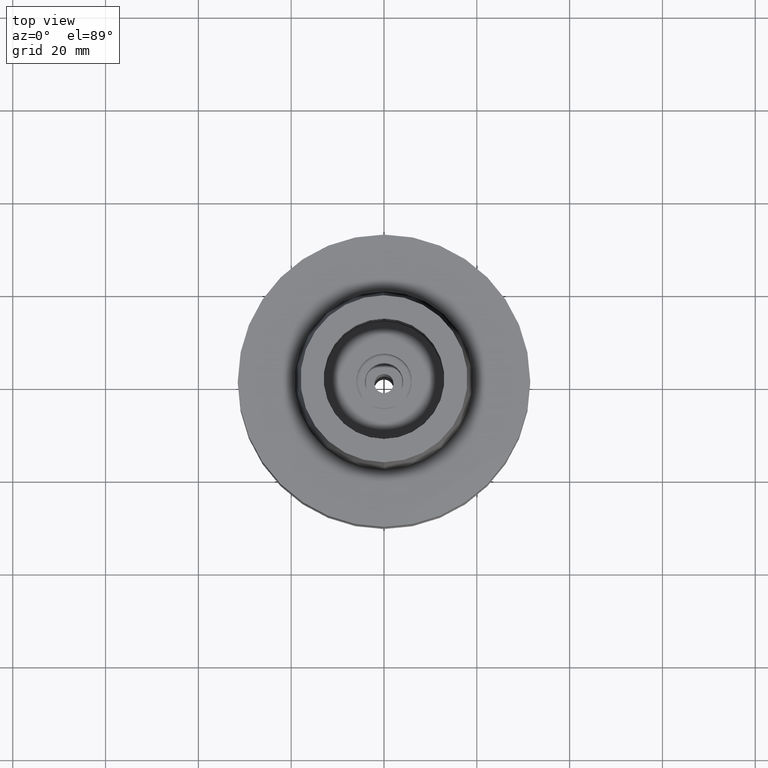
[diagram: clean part render]
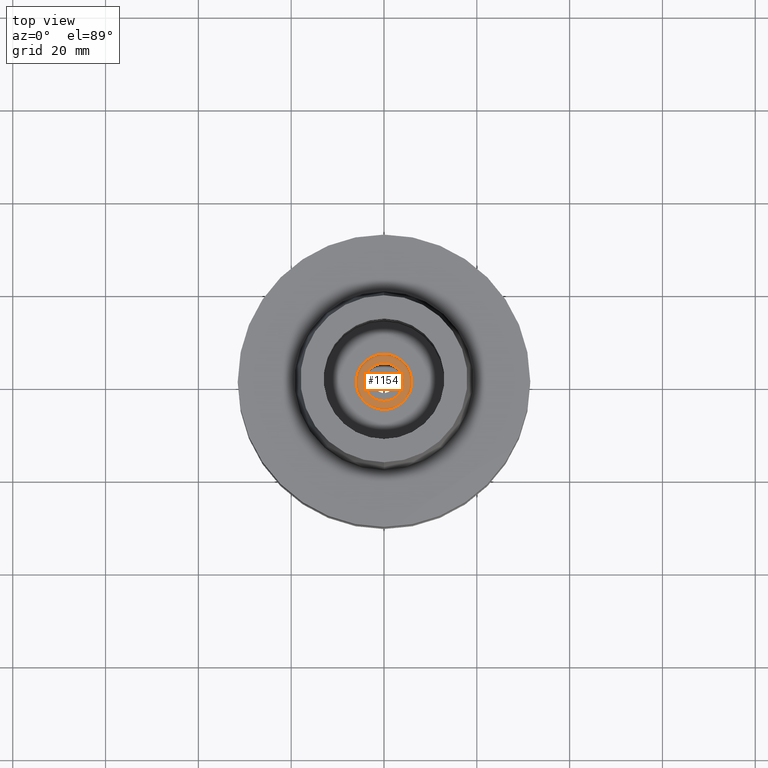
[diagram: same view with one face highlighted and labeled with its STEP entity id]
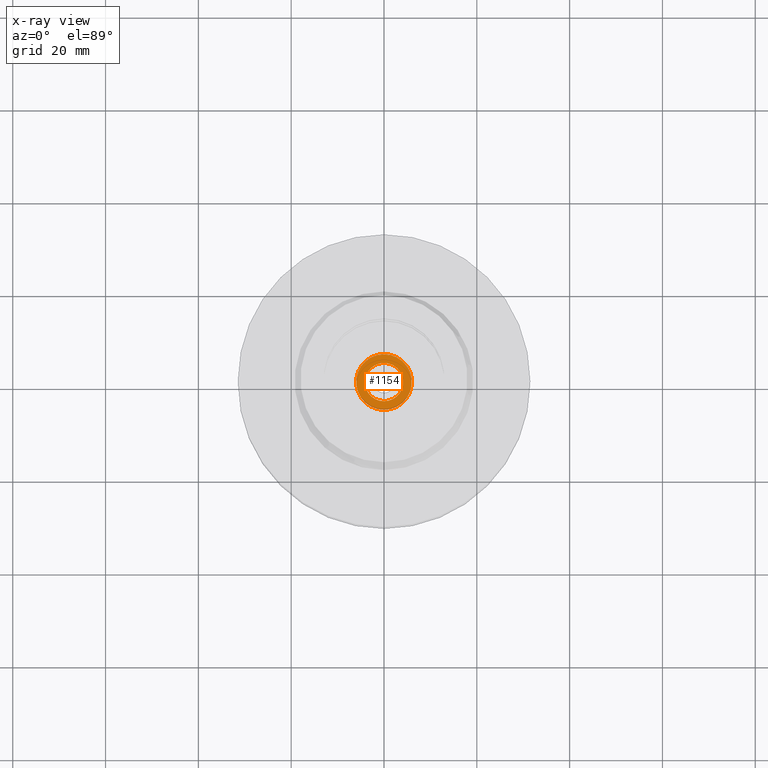
[diagram: x-ray of the same camera — body ghosted, the highlighted face saturated]
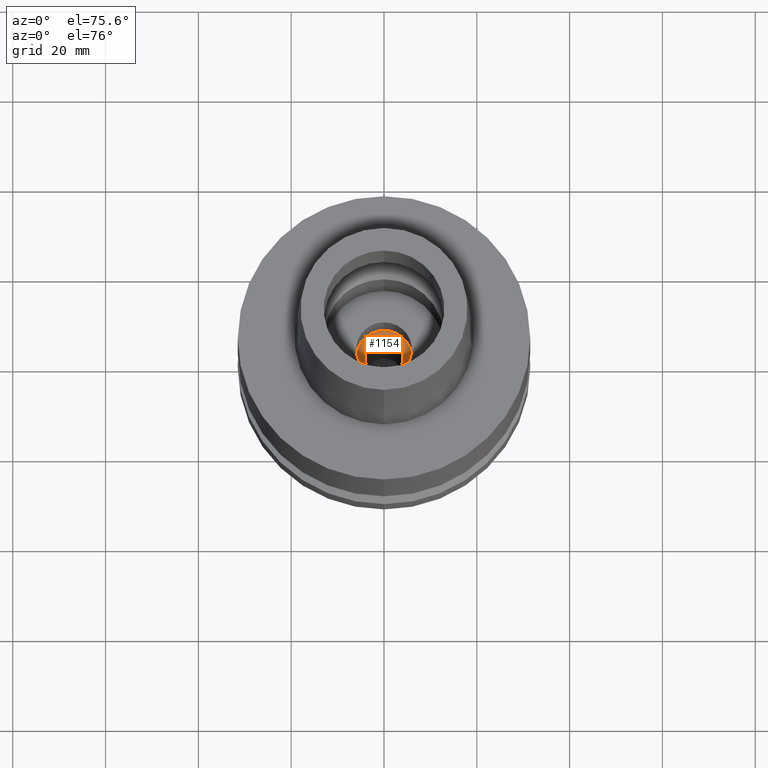
[diagram: same view with one face highlighted and labeled with its STEP entity id]
A machine part, top view. The second image highlights one B-rep face of the part: STEP entity #1154.
The next image is the same camera in x-ray: the body ghosted, the highlighted face saturated — about 0% of this face is hidden behind the body in this view.
A second angle (auxiliary view) of the same face is appended — the face is thin or edge-on in the first view.
In plain terms, the highlighted planar face has unit normal (0, 0, 1).
Its self-contained STEP definition (entity closure, byte-faithful):
#10 = ORIENTED_EDGE ( 'NONE', *, *, #1364, .F. ) ;
#60 = VERTEX_POINT ( 'NONE', #714 ) ;
#134 = AXIS2_PLACEMENT_3D ( 'NONE', #147, #961, #299 ) ;
#147 = CARTESIAN_POINT ( 'NONE',  ( 0.0000000000000000000, 0.0000000000000000000, -16.94999999999999929 ) ) ;
#284 = ORIENTED_EDGE ( 'NONE', *, *, #1115, .F. ) ;
#299 = DIRECTION ( 'NONE',  ( 0.0000000000000000000, -1.000000000000000000, 0.0000000000000000000 ) ) ;
#335 = VERTEX_POINT ( 'NONE', #459 ) ;
#362 = CARTESIAN_POINT ( 'NONE',  ( 0.0000000000000000000, 4.125000000000000000, -16.94999999999999929 ) ) ;
#370 = DIRECTION ( 'NONE',  ( 0.0000000000000000000, 1.000000000000000000, 0.0000000000000000000 ) ) ;
#439 = AXIS2_PLACEMENT_3D ( 'NONE', #1634, #2265, #1812 ) ;
#459 = CARTESIAN_POINT ( 'NONE',  ( 0.0000000000000000000, -4.125000000000000000, -16.94999999999999929 ) ) ;
#473 = DIRECTION ( 'NONE',  ( 0.0000000000000000000, 0.0000000000000000000, 1.000000000000000000 ) ) ;
#657 = FACE_BOUND ( 'NONE', #1004, .T. ) ;
#714 = CARTESIAN_POINT ( 'NONE',  ( 0.0000000000000000000, -6.000000000000000000, -16.94999999999999929 ) ) ;
#748 = DIRECTION ( 'NONE',  ( 0.0000000000000000000, 1.000000000000000000, 0.0000000000000000000 ) ) ;
#961 = DIRECTION ( 'NONE',  ( 0.0000000000000000000, 0.0000000000000000000, -1.000000000000000000 ) ) ;
#1004 = EDGE_LOOP ( 'NONE', ( #10, #284 ) ) ;
#1115 = EDGE_CURVE ( 'NONE', #335, #2060, #2064, .T. ) ;
#1141 = PLANE ( 'NONE',  #439 ) ;
#1154 = ADVANCED_FACE ( 'NONE', ( #2365, #657 ), #1141, .T. ) ;
#1212 = AXIS2_PLACEMENT_3D ( 'NONE', #1449, #2313, #370 ) ;
#1218 = EDGE_LOOP ( 'NONE', ( #1381, #1996 ) ) ;
#1364 = EDGE_CURVE ( 'NONE', #2060, #335, #2119, .T. ) ;
#1381 = ORIENTED_EDGE ( 'NONE', *, *, #2156, .F. ) ;
#1395 = CIRCLE ( 'NONE', #134, 6.000000000000000000 ) ;
#1449 = CARTESIAN_POINT ( 'NONE',  ( 0.0000000000000000000, 0.0000000000000000000, -16.94999999999999929 ) ) ;
#1634 = CARTESIAN_POINT ( 'NONE',  ( 0.0000000000000000000, 0.0000000000000000000, -16.94999999999999929 ) ) ;
#1679 = VERTEX_POINT ( 'NONE', #2686 ) ;
#1812 = DIRECTION ( 'NONE',  ( 1.000000000000000000, 0.0000000000000000000, 0.0000000000000000000 ) ) ;
#1889 = CIRCLE ( 'NONE', #2431, 6.000000000000000000 ) ;
#1932 = AXIS2_PLACEMENT_3D ( 'NONE', #2605, #473, #2200 ) ;
#1996 = ORIENTED_EDGE ( 'NONE', *, *, #2082, .F. ) ;
#2060 = VERTEX_POINT ( 'NONE', #362 ) ;
#2064 = CIRCLE ( 'NONE', #1932, 4.125000000000000000 ) ;
#2067 = CARTESIAN_POINT ( 'NONE',  ( 0.0000000000000000000, 0.0000000000000000000, -16.94999999999999929 ) ) ;
#2082 = EDGE_CURVE ( 'NONE', #60, #1679, #1395, .T. ) ;
#2119 = CIRCLE ( 'NONE', #1212, 4.125000000000000000 ) ;
#2156 = EDGE_CURVE ( 'NONE', #1679, #60, #1889, .T. ) ;
#2200 = DIRECTION ( 'NONE',  ( 0.0000000000000000000, -1.000000000000000000, 0.0000000000000000000 ) ) ;
#2265 = DIRECTION ( 'NONE',  ( 0.0000000000000000000, 0.0000000000000000000, 1.000000000000000000 ) ) ;
#2313 = DIRECTION ( 'NONE',  ( 0.0000000000000000000, 0.0000000000000000000, 1.000000000000000000 ) ) ;
#2365 = FACE_OUTER_BOUND ( 'NONE', #1218, .T. ) ;
#2431 = AXIS2_PLACEMENT_3D ( 'NONE', #2067, #2690, #748 ) ;
#2605 = CARTESIAN_POINT ( 'NONE',  ( 0.0000000000000000000, 0.0000000000000000000, -16.94999999999999929 ) ) ;
#2686 = CARTESIAN_POINT ( 'NONE',  ( 0.0000000000000000000, 6.000000000000000000, -16.94999999999999929 ) ) ;
#2690 = DIRECTION ( 'NONE',  ( 0.0000000000000000000, 0.0000000000000000000, -1.000000000000000000 ) ) ;